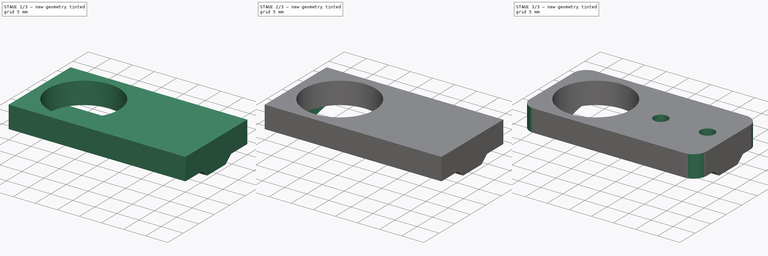
[diagram: build sequence overview — one tinted view per stage of 3, left to right]
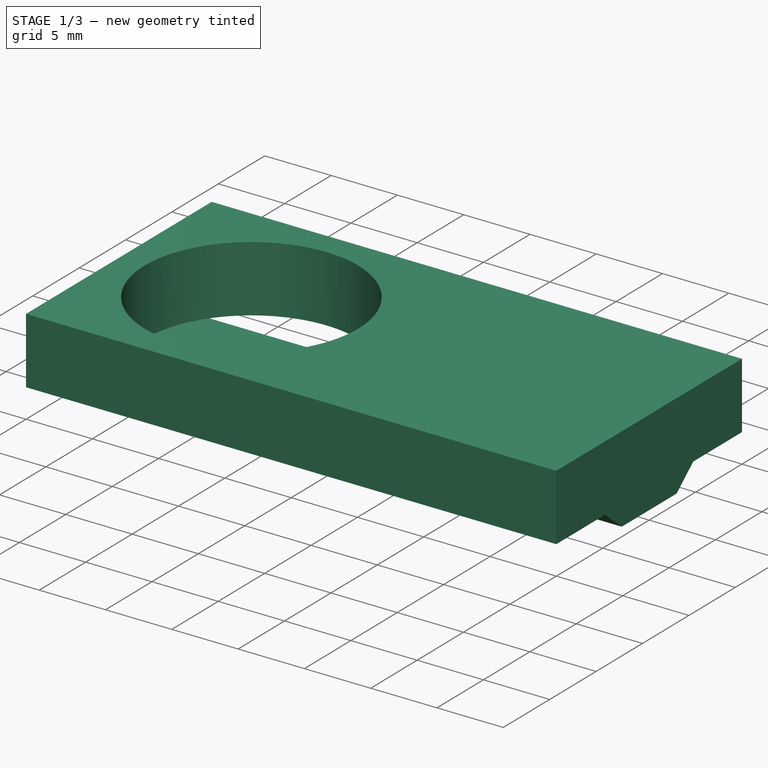
[diagram: stage 1 of 3 — iso view after this stage's code; geometry added in this stage tinted green]
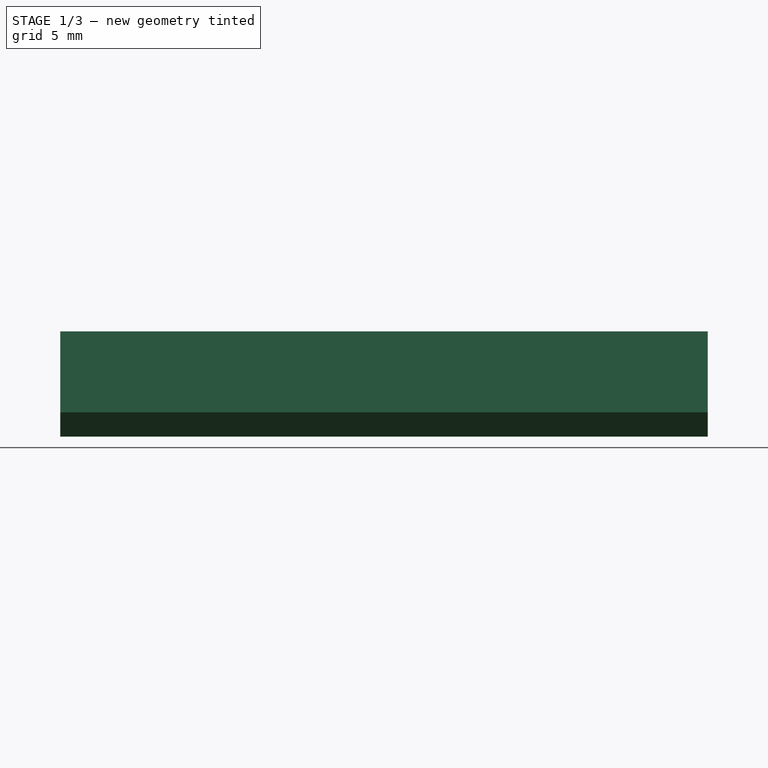
[diagram: stage 1 of 3 — front view after this stage's code; geometry added in this stage tinted green]
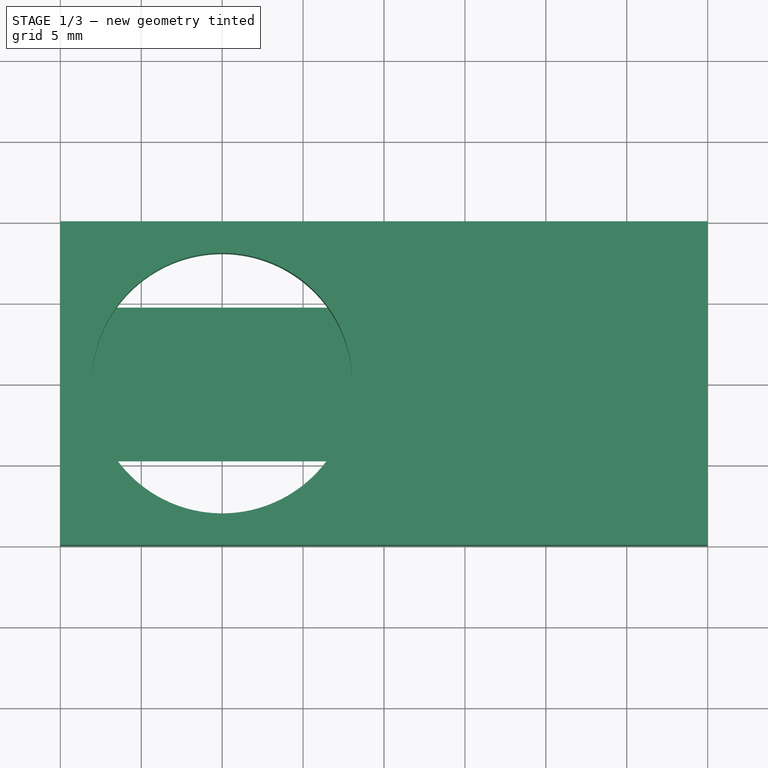
[diagram: stage 1 of 3 — top view after this stage's code; geometry added in this stage tinted green]
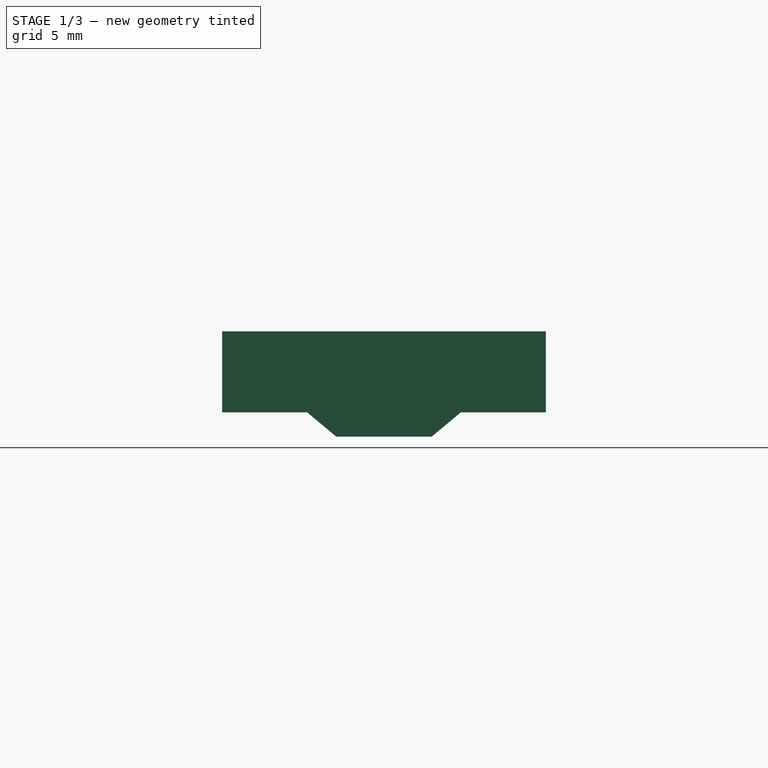
[diagram: stage 1 of 3 — right view after this stage's code; geometry added in this stage tinted green]
FCSTD DOCUMENT  (FreeCAD 0.21R33771 (Git))
Label: guia-para-furos
License: All rights reserved
LicenseURL: https://en.wikipedia.org/wiki/All_rights_reserved
objects: Sketcher::SketchObject×3, PartDesign::Pad×2, PartDesign::Pocket×2, PartDesign::Fillet×1, PartDesign::Body×1
note: 14 computed .brp shape members not serialized (recipe doc carries the construction recipe); baked Part::Feature solids carry a one-line shape summary decoded from their .brp

FEATURE [Sketcher::SketchObject] Sketch
  FullyConstrained = true
  MapMode = 5
  Support = -> [XY_Plane]
  sketch-geometry (9):
    g0: LineSegment StartX=-10 StartY=10 StartZ=0 EndX=10 EndY=10 EndZ=0
    g1: LineSegment StartX=10 StartY=10 StartZ=0 EndX=10 EndY=-10 EndZ=0
    g2: LineSegment StartX=10 StartY=-10 StartZ=0 EndX=-10 EndY=-10 EndZ=0
    g3: LineSegment StartX=-10 StartY=-10 StartZ=0 EndX=-10 EndY=10 EndZ=0
    g4: Circle CenterX=0 CenterY=0 CenterZ=0 NormalX=0 NormalY=0 NormalZ=1 AngleXU=0 Radius=8.05
    g5: LineSegment StartX=10 StartY=10 StartZ=0 EndX=30 EndY=10 EndZ=0
    g6: LineSegment StartX=30 StartY=10 StartZ=0 EndX=30 EndY=-10 EndZ=0
    g7: LineSegment StartX=30 StartY=-10 StartZ=0 EndX=10 EndY=-10 EndZ=0
    g8: LineSegment StartX=10 StartY=-10 StartZ=0 EndX=10 EndY=10 EndZ=0
  constraints (23):
    c: Coincident(g0,g1)
    c: Coincident(g1,g2)
    c: Coincident(g2,g3)
    c: Coincident(g3,g0)
    c: Horizontal(g2)
    c: Vertical(g1)
    c: Symmetric(g2,g0,g-1)
    c: Symmetric(g0,g0,g-2)
    c: Coincident(g4,g-1)
    c: Coincident(g5,g6)
    c: Coincident(g6,g7)
    c: Coincident(g7,g8)
    c: Coincident(g8,g5)
    c: Horizontal(g5)
    c: Horizontal(g7)
    c: Vertical(g6)
    c: Vertical(g8)
    c: Coincident(g5,g0)
    c: Equal(g7,g6)
    c: Equal(g6,g3)
    c: Diameter(g4) = 16.1
    c: DistanceY(g3,g3) = 20
    c: Equal(g0,g7)
FEATURE [PartDesign::Pad] Pad
  Direction = (0,0,1)
  Length = 5
  Length2 = 10
  Profile = -> Sketch
  ReferenceAxis = -> Sketch [N_Axis]
  Type = 0
FEATURE [Sketcher::SketchObject] Sketch001
  FullyConstrained = true
  MapMode = 5
  Placement = pos=(30,0,0) rot=(0.57735,0.57735,0.57735;2.0944rad)
  Support = -> [Pad]
  sketch-geometry (4):
    g0: LineSegment StartX=-4.75 StartY=0 StartZ=0 EndX=4.75 EndY=0 EndZ=0
    g1: LineSegment StartX=4.75 StartY=0 StartZ=0 EndX=2.95 EndY=-1.5 EndZ=0
    g2: LineSegment StartX=2.95 StartY=-1.5 StartZ=0 EndX=-2.95 EndY=-1.5 EndZ=0
    g3: LineSegment StartX=-2.95 StartY=-1.5 StartZ=0 EndX=-4.75 EndY=0 EndZ=0
  constraints (10):
    c: Coincident(g0,g1)
    c: Coincident(g1,g2)
    c: Coincident(g2,g3)
    c: Coincident(g3,g0)
    c: Symmetric(g0,g0,g-2)
    c: Symmetric(g2,g1,g-2)
    c: PointOnObject(g-1,g0)
    c: DistanceY(g2,g0) = 1.5
    c: DistanceX(g0,g0) = 9.5
    c: DistanceX(g2,g2) = 5.9
FEATURE [PartDesign::Pad] Pad001
  BaseFeature = -> Pad
  Direction = (1,0,0)
  Length = 10
  Length2 = 10
  Profile = -> Sketch001
  ReferenceAxis = -> Sketch001 [N_Axis]
  Type = 3
  UpToFace = -> Pad [Face6]
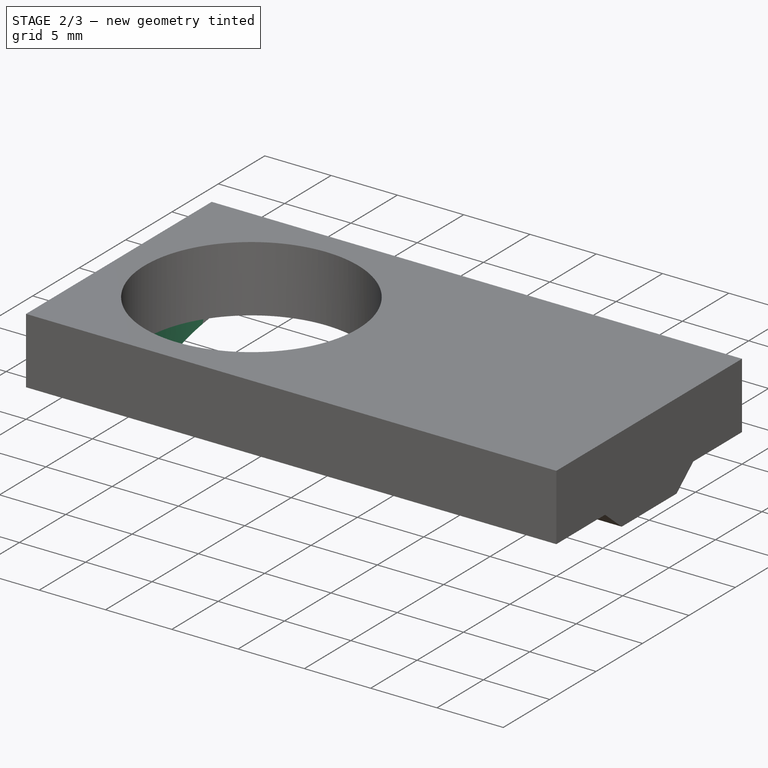
[diagram: stage 2 of 3 — iso view after this stage's code; geometry added in this stage tinted green]
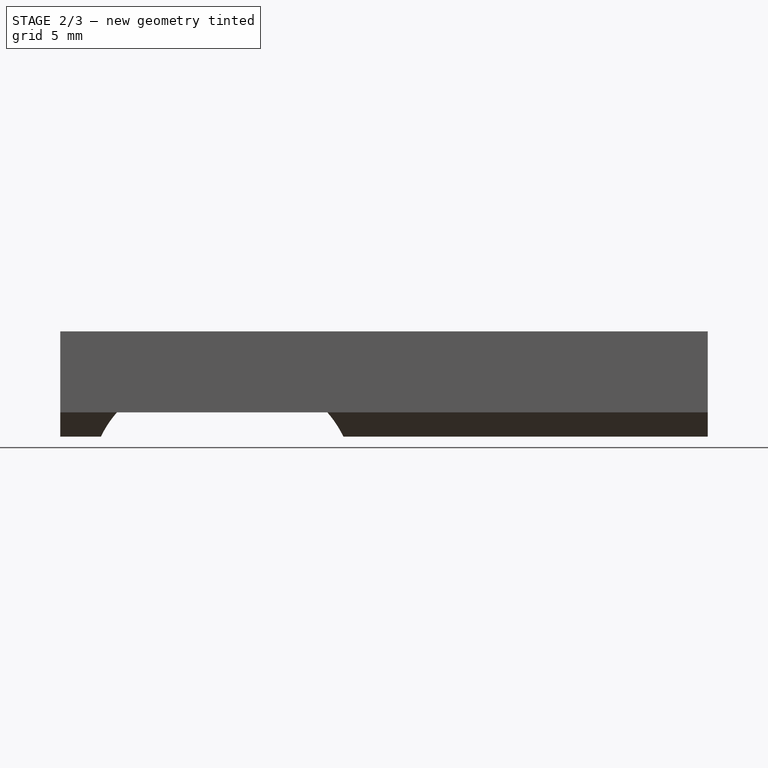
[diagram: stage 2 of 3 — front view after this stage's code; geometry added in this stage tinted green]
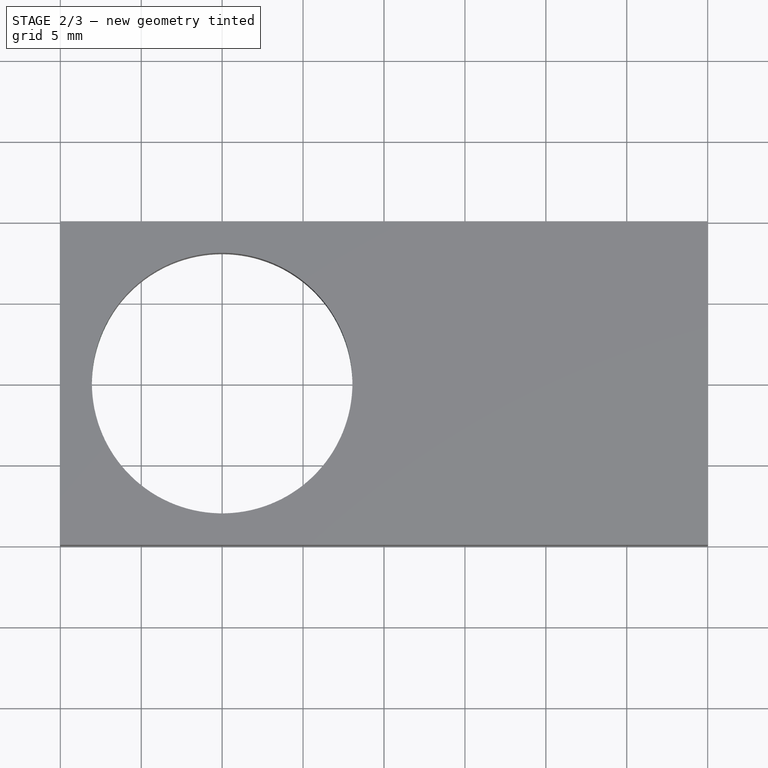
[diagram: stage 2 of 3 — top view after this stage's code; geometry added in this stage tinted green]
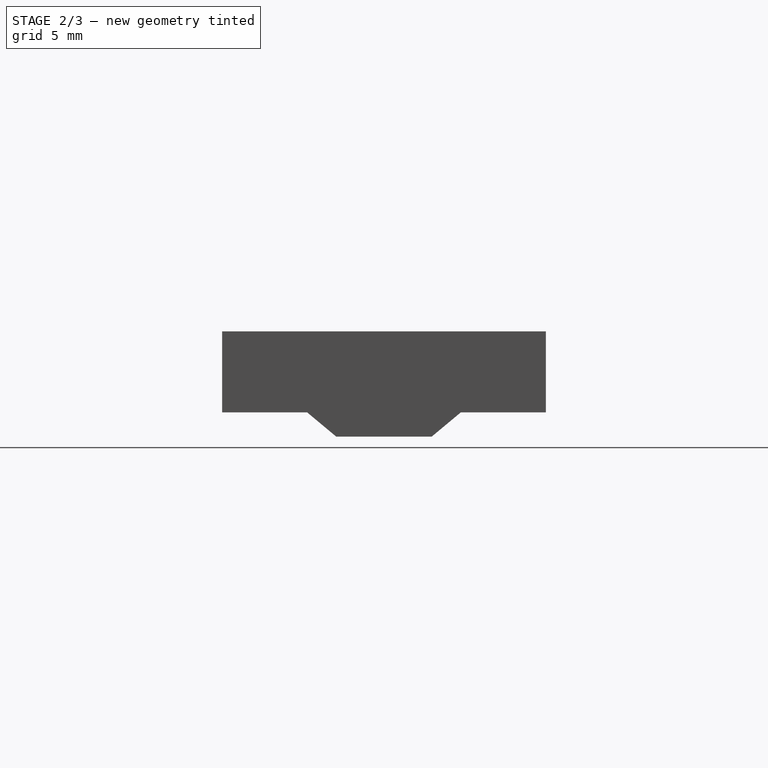
[diagram: stage 2 of 3 — right view after this stage's code; geometry added in this stage tinted green]
FEATURE [PartDesign::Pocket] Pocket
  BaseFeature = -> Pad001
  Direction = (0,0,-1)
  Length = 5
  Length2 = 5
  Profile = -> Pad001 [Face16]
  Type = 1
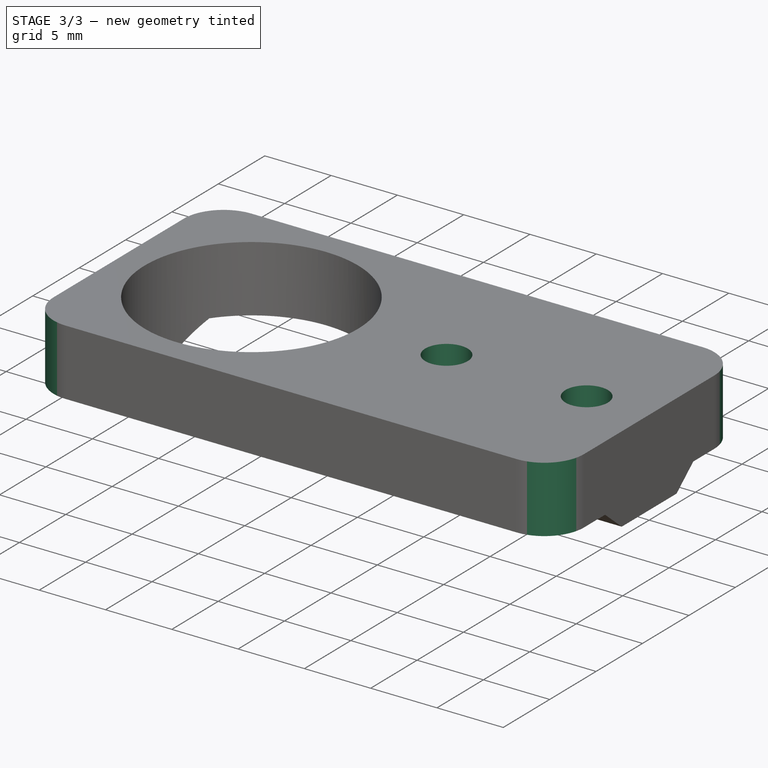
[diagram: stage 3 of 3 — iso view after this stage's code; geometry added in this stage tinted green]
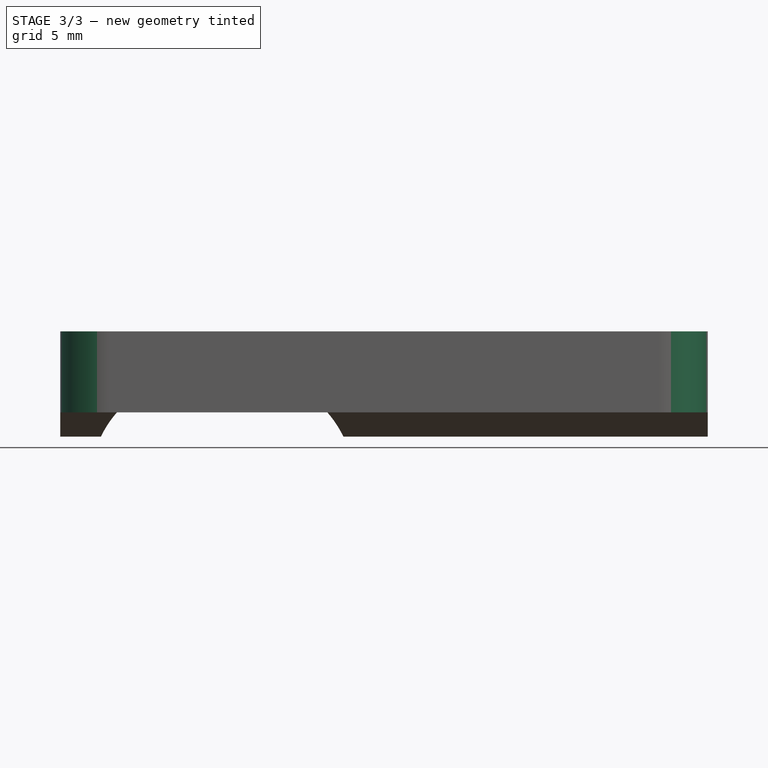
[diagram: stage 3 of 3 — front view after this stage's code; geometry added in this stage tinted green]
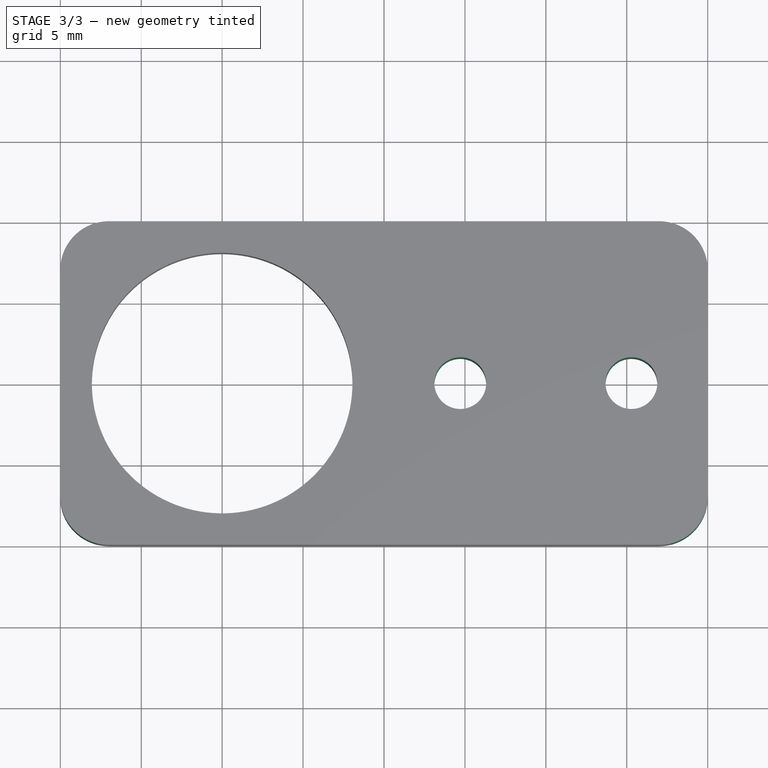
[diagram: stage 3 of 3 — top view after this stage's code; geometry added in this stage tinted green]
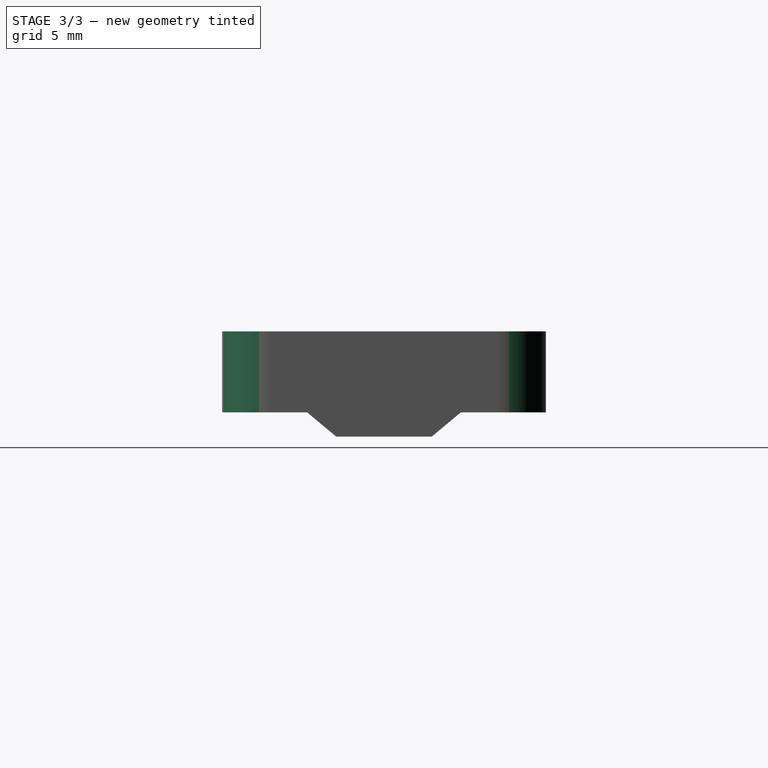
[diagram: stage 3 of 3 — right view after this stage's code; geometry added in this stage tinted green]
FEATURE [Sketcher::SketchObject] Sketch002
  ExternalGeometry = -> [Pocket]
  FullyConstrained = true
  MapMode = 5
  Placement = pos=(0,0,-1.5) rot=(1,0,0;3.14159rad)
  Support = -> [Pocket]
  sketch-geometry (7):
    g0: LineSegment StartX=30 StartY=10 StartZ=0 EndX=10 EndY=10 EndZ=0
    g1: LineSegment StartX=10 StartY=10 StartZ=0 EndX=10 EndY=-10 EndZ=0
    g2: LineSegment StartX=10 StartY=-10 StartZ=0 EndX=30 EndY=-10 EndZ=0
    g3: LineSegment StartX=30 StartY=-10 StartZ=0 EndX=30 EndY=10 EndZ=0
    g4: Circle CenterX=14.714 CenterY=0 CenterZ=0 NormalX=0 NormalY=0 NormalZ=1 AngleXU=0 Radius=1.6
    g5: Circle CenterX=25.286 CenterY=0 CenterZ=0 NormalX=0 NormalY=0 NormalZ=1 AngleXU=0 Radius=1.6
    g6: LineSegment StartX=20 StartY=10 StartZ=0 EndX=20 EndY=-10 EndZ=0
  constraints (18):
    c: Coincident(g0,g1)
    c: Coincident(g1,g2)
    c: Coincident(g2,g3)
    c: Coincident(g3,g0)
    c: Horizontal(g0)
    c: Horizontal(g2)
    c: Vertical(g1)
    c: Symmetric(g2,g0,g-1)
    c: Equal(g1,g0)
    c: Coincident(g0,g-3)
    c: PointOnObject(g4,g-1)
    c: Equal(g4,g5)
    c: Symmetric(g0,g0,g6)
    c: PointOnObject(g6,g2)
    c: PointOnObject(g6,g0)
    c: Symmetric(g4,g5,g6)
    c: Diameter(g4) = 3.2
    c: DistanceX(g4,g5) = 10.572
FEATURE [PartDesign::Pocket] Pocket001
  BaseFeature = -> Pocket
  Direction = (0,0,1)
  Length = 5
  Length2 = 5
  Profile = -> Sketch002
  ReferenceAxis = -> Sketch002 [N_Axis]
  Type = 1
FEATURE [PartDesign::Fillet] Fillet
  Base = -> Pocket001 [Edge33,Edge10,Edge5,Edge1]
  BaseFeature = -> Pocket001
  Radius = 3
  SupportTransform = false
  UseAllEdges = false
FEATURE [PartDesign::Body] Body
  Group = -> [Sketch,Pad,Sketch001,Pad001,Pocket,Sketch002,Pocket001,Fillet]
  Origin = -> Origin
  Tip = -> Fillet
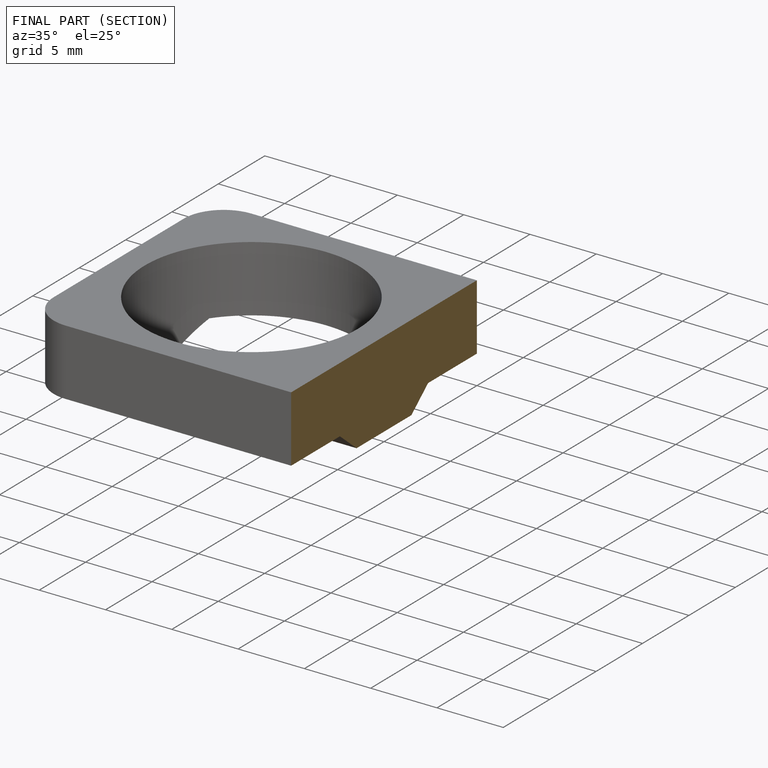
[diagram: finished part — half-section view (interior)]
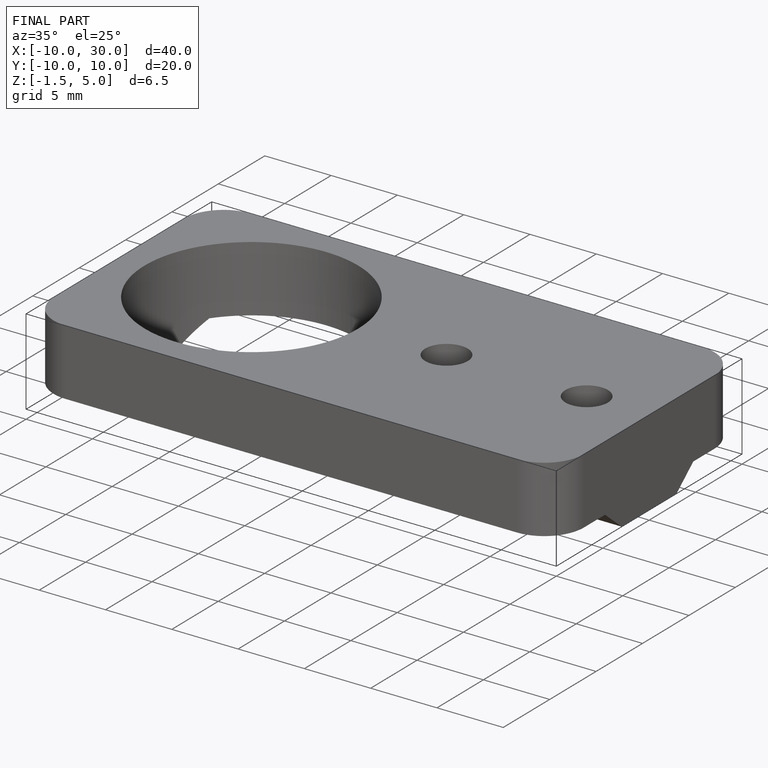
[diagram: finished part — iso view with bounding-box wireframe]
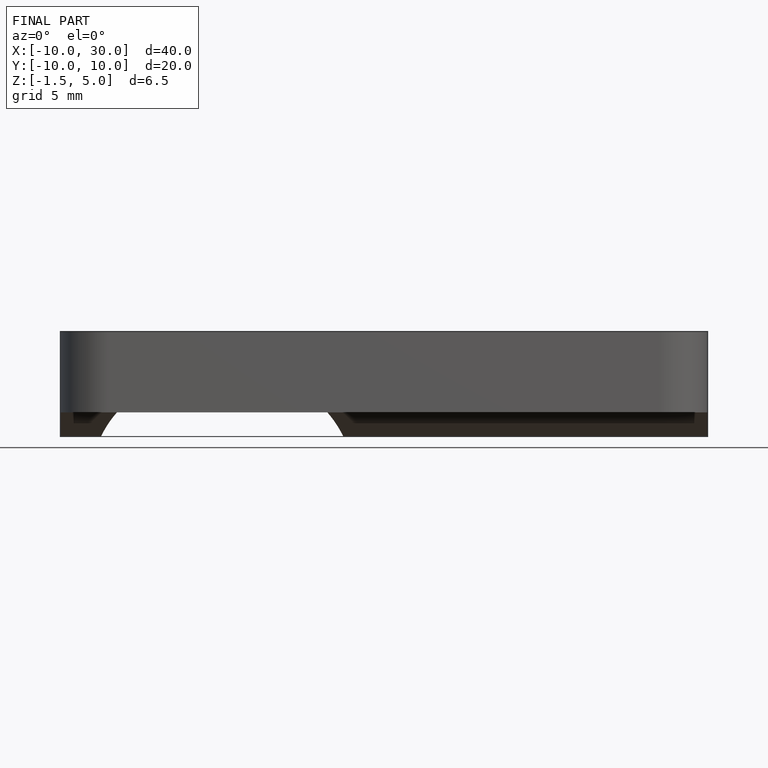
[diagram: finished part — front view with bounding-box wireframe]
